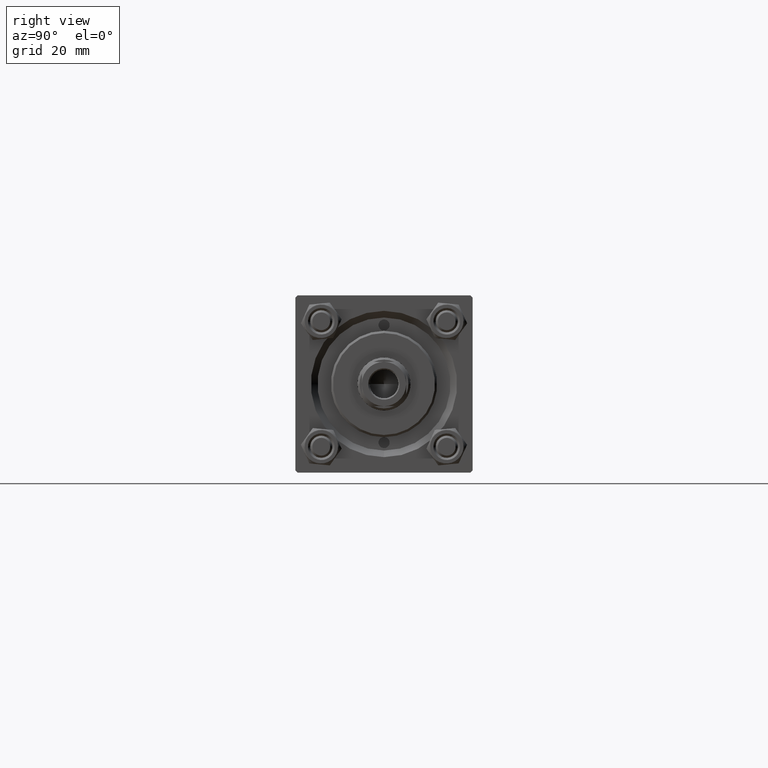
[diagram: clean part render]
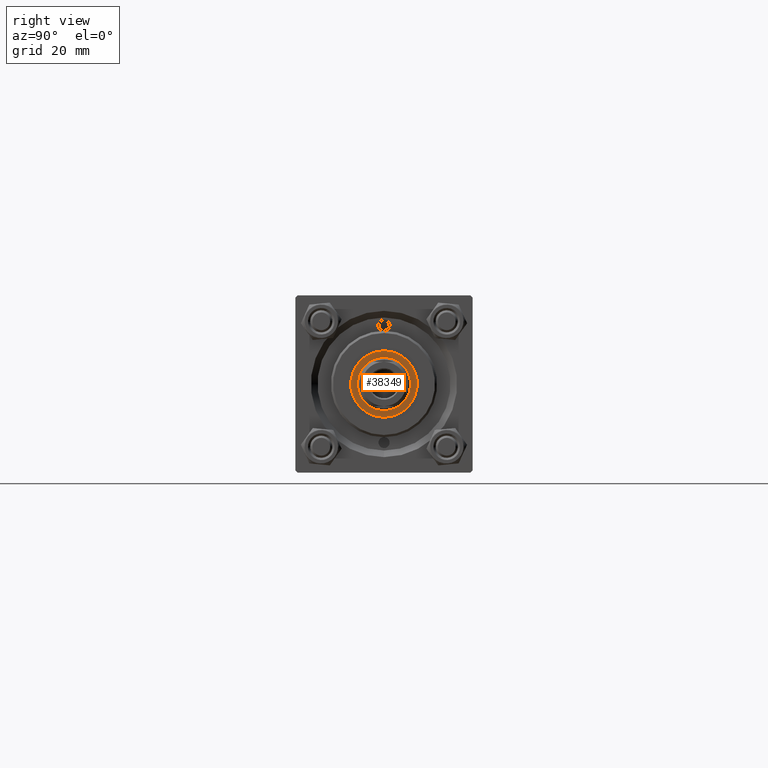
[diagram: same view with one face highlighted and labeled with its STEP entity id]
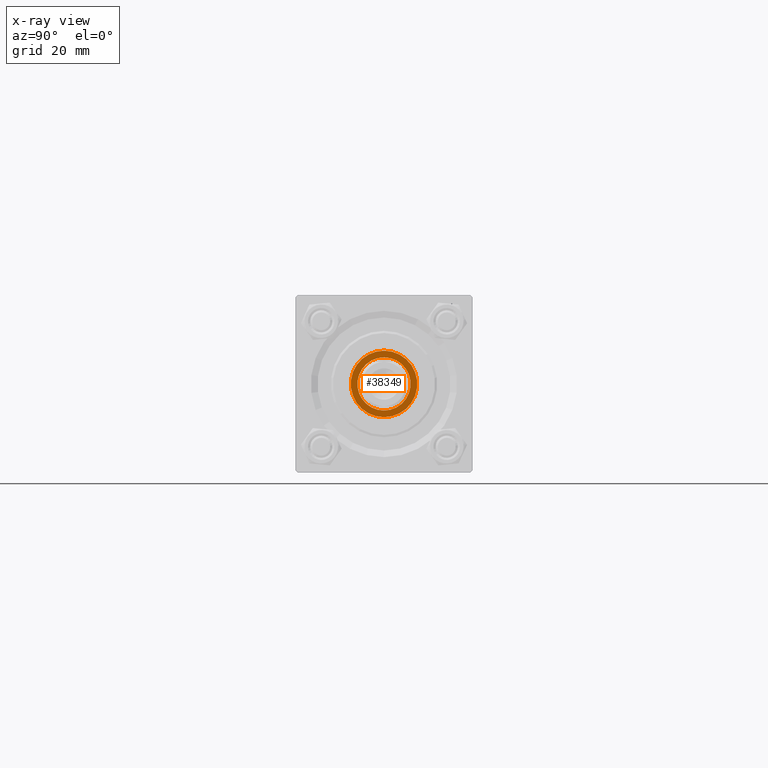
[diagram: x-ray of the same camera — body ghosted, the highlighted face saturated]
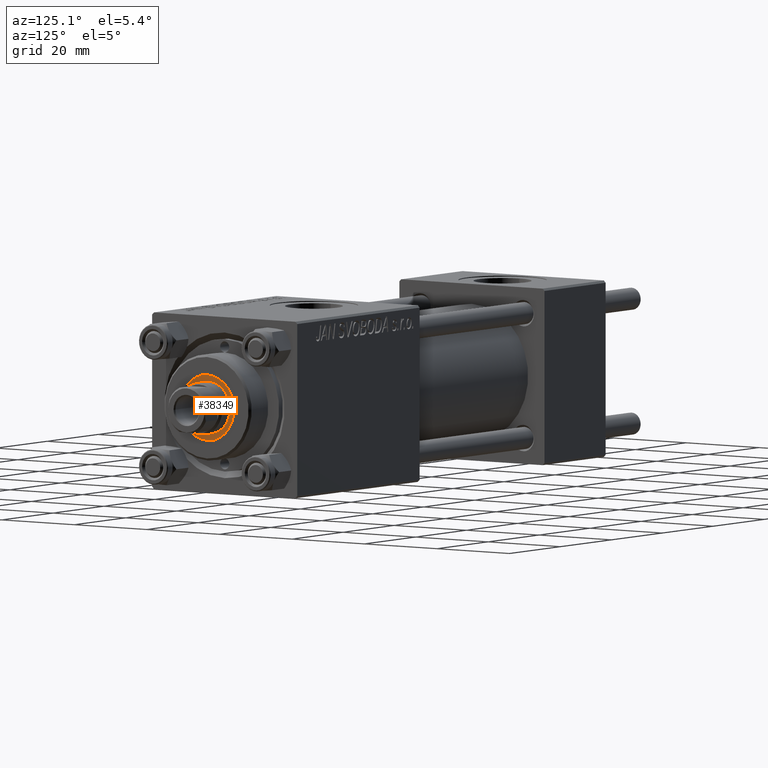
[diagram: same view with one face highlighted and labeled with its STEP entity id]
A machine part, right view. The second image highlights one B-rep face of the part: STEP entity #38349.
The next image is the same camera in x-ray: the body ghosted, the highlighted face saturated — about 0% of this face is hidden behind the body in this view.
A second angle (auxiliary view) of the same face is appended — the face is thin or edge-on in the first view.
In plain terms, the highlighted planar face has unit normal (1, 0, -0).
Its self-contained STEP definition (entity closure, byte-faithful):
#1216 = EDGE_LOOP ( 'NONE', ( #40293, #5940 ) ) ;
#2111 = FACE_OUTER_BOUND ( 'NONE', #1216, .T. ) ;
#2835 = CIRCLE ( 'NONE', #24570, 6.000000000000000888 ) ;
#2859 = FACE_BOUND ( 'NONE', #45662, .T. ) ;
#4058 = DIRECTION ( 'NONE',  ( 1.000000000000000000, 0.000000000000000000, 0.000000000000000000 ) ) ;
#4943 = DIRECTION ( 'NONE',  ( 1.000000000000000000, 0.000000000000000000, 0.000000000000000000 ) ) ;
#5940 = ORIENTED_EDGE ( 'NONE', *, *, #39393, .T. ) ;
#7592 = CARTESIAN_POINT ( 'NONE',  ( 0.000000000000000000, 0.000000000000000000, 35.20000000000000284 ) ) ;
#8470 = AXIS2_PLACEMENT_3D ( 'NONE', #20339, #8713, #4943 ) ;
#8543 = EDGE_CURVE ( 'NONE', #18877, #30262, #2835, .T. ) ;
#8613 = AXIS2_PLACEMENT_3D ( 'NONE', #33167, #29369, #33654 ) ;
#8713 = DIRECTION ( 'NONE',  ( 0.000000000000000000, 0.000000000000000000, 1.000000000000000000 ) ) ;
#10128 = VERTEX_POINT ( 'NONE', #42744 ) ;
#10180 = CARTESIAN_POINT ( 'NONE',  ( 0.000000000000000000, 0.000000000000000000, 35.20000000000000284 ) ) ;
#10610 = EDGE_CURVE ( 'NONE', #30262, #18877, #33532, .T. ) ;
#10927 = AXIS2_PLACEMENT_3D ( 'NONE', #32904, #44257, #29121 ) ;
#12213 = CARTESIAN_POINT ( 'NONE',  ( 6.000000000000000888, 0.000000000000000000, 35.20000000000000284 ) ) ;
#17004 = VERTEX_POINT ( 'NONE', #29704 ) ;
#18877 = VERTEX_POINT ( 'NONE', #28782 ) ;
#20339 = CARTESIAN_POINT ( 'NONE',  ( 0.000000000000000000, 0.000000000000000000, 35.20000000000000284 ) ) ;
#22988 = DIRECTION ( 'NONE',  ( -0.000000000000000000, -0.000000000000000000, -1.000000000000000000 ) ) ;
#24570 = AXIS2_PLACEMENT_3D ( 'NONE', #7592, #22988, #4058 ) ;
#27665 = ORIENTED_EDGE ( 'NONE', *, *, #10610, .T. ) ;
#28782 = CARTESIAN_POINT ( 'NONE',  ( -6.000000000000000888, 7.347880794884119736E-16, 35.20000000000000284 ) ) ;
#29121 = DIRECTION ( 'NONE',  ( 1.000000000000000000, 0.000000000000000000, 0.000000000000000000 ) ) ;
#29369 = DIRECTION ( 'NONE',  ( 0.000000000000000000, 0.000000000000000000, 1.000000000000000000 ) ) ;
#29630 = DIRECTION ( 'NONE',  ( 1.000000000000000000, 0.000000000000000000, 0.000000000000000000 ) ) ;
#29704 = CARTESIAN_POINT ( 'NONE',  ( -7.500000000000000888, 9.184850993605149917E-16, 35.20000000000000284 ) ) ;
#30262 = VERTEX_POINT ( 'NONE', #12213 ) ;
#30264 = CIRCLE ( 'NONE', #8470, 7.500000000000000888 ) ;
#32904 = CARTESIAN_POINT ( 'NONE',  ( 0.000000000000000000, 0.000000000000000000, 35.20000000000000284 ) ) ;
#33167 = CARTESIAN_POINT ( 'NONE',  ( 0.000000000000000000, 0.000000000000000000, 35.20000000000000284 ) ) ;
#33532 = CIRCLE ( 'NONE', #10927, 6.000000000000000888 ) ;
#33654 = DIRECTION ( 'NONE',  ( 1.000000000000000000, 0.000000000000000000, -0.000000000000000000 ) ) ;
#33913 = EDGE_CURVE ( 'NONE', #10128, #17004, #30264, .T. ) ;
#36692 = DIRECTION ( 'NONE',  ( 0.000000000000000000, 0.000000000000000000, 1.000000000000000000 ) ) ;
#36902 = CIRCLE ( 'NONE', #48221, 7.500000000000000888 ) ;
#38349 = ADVANCED_FACE ( 'NONE', ( #2111, #2859 ), #48813, .T. ) ;
#39393 = EDGE_CURVE ( 'NONE', #17004, #10128, #36902, .T. ) ;
#40293 = ORIENTED_EDGE ( 'NONE', *, *, #33913, .T. ) ;
#42744 = CARTESIAN_POINT ( 'NONE',  ( 7.500000000000000888, 0.000000000000000000, 35.20000000000000284 ) ) ;
#44257 = DIRECTION ( 'NONE',  ( -0.000000000000000000, -0.000000000000000000, -1.000000000000000000 ) ) ;
#45662 = EDGE_LOOP ( 'NONE', ( #27665, #45756 ) ) ;
#45756 = ORIENTED_EDGE ( 'NONE', *, *, #8543, .T. ) ;
#48221 = AXIS2_PLACEMENT_3D ( 'NONE', #10180, #36692, #29630 ) ;
#48813 = PLANE ( 'NONE',  #8613 ) ;